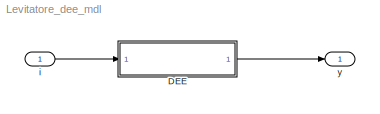
MODEL Levitatore_dee_mdl
KIND model
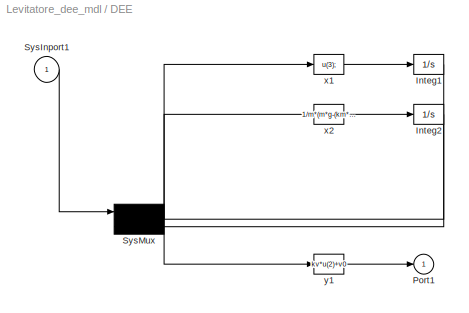
BLOCK [SubSystem] DEE
  FunctionWithSeparateData = off
  MaskDisplay = disp('Levitatore')
  MaskHideContents = off
  MaskIconFrame = on
  MaskIconOpaque = on
  MaskIconRotate = none
  MaskIconUnits = autoscale
  MaskPortRotate = default
  MaskType = Differential Equation Editor (DEE)
  MinAlgLoopOccurrences = off
  Opaque = off
  OpenFcn = diffeqed
  Ports = [1, 1]
  PropExecContextOutsideSubsystem = off
  RTWSystemCode = Auto
  RequestExecContextInheritance = off
  SID = 2
BLOCK [Integrator] DEE/Integ1
  InitialCondition = 1
  Ports = [1, 1]
  SID = 4
BLOCK [Integrator] DEE/Integ2
  Ports = [1, 1]
  SID = 5
BLOCK [Outport] DEE/Port1
  IconDisplay = Port number
  SID = 10
BLOCK [Inport] DEE/SysInport1
  IconDisplay = Port number
  SID = 3
BLOCK [Mux] DEE/SysMux
  Inputs = 3
  Ports = [3, 1]
  SID = 6
BLOCK [Fcn] DEE/x1
  Expr = u(3);
  SID = 7
BLOCK [Fcn] DEE/x2
  Expr = 1/m*(m*g-(km*u^2+k0)/u(2)^2)
  SID = 8
BLOCK [Fcn] DEE/y1
  Expr = kv*u(2)+v0
  SID = 9
BLOCK [Inport] i
  IconDisplay = Port number
  OutDataType = sfix(16)
  OutScaling = 2^0
  SID = 1
BLOCK [Outport] y
  IconDisplay = Port number
  OutDataType = sfix(16)
  OutScaling = 2^0
  SID = 11
LINE DEE/Integ1:1 -> DEE/SysMux:2
LINE DEE/Integ2:1 -> DEE/SysMux:3
LINE DEE/SysInport1:1 -> DEE/SysMux:1
NET DEE/SysMux:1 -> DEE/x1:1, DEE/x2:1, DEE/y1:1
LINE DEE/x1:1 -> DEE/Integ1:1
LINE DEE/x2:1 -> DEE/Integ2:1
LINE DEE/y1:1 -> DEE/Port1:1
LINE DEE:1 -> y:1
LINE i:1 -> DEE:1
note: NET lines group one-source signal fan-out (src -> all destinations, sorted); 1:1 wires keep LINE
